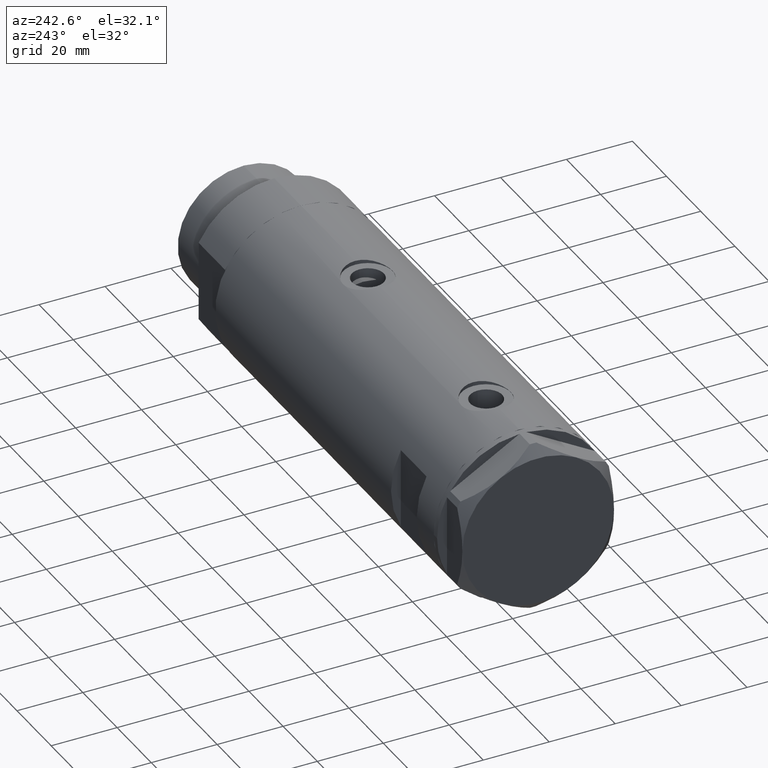
[diagram: clean part render]
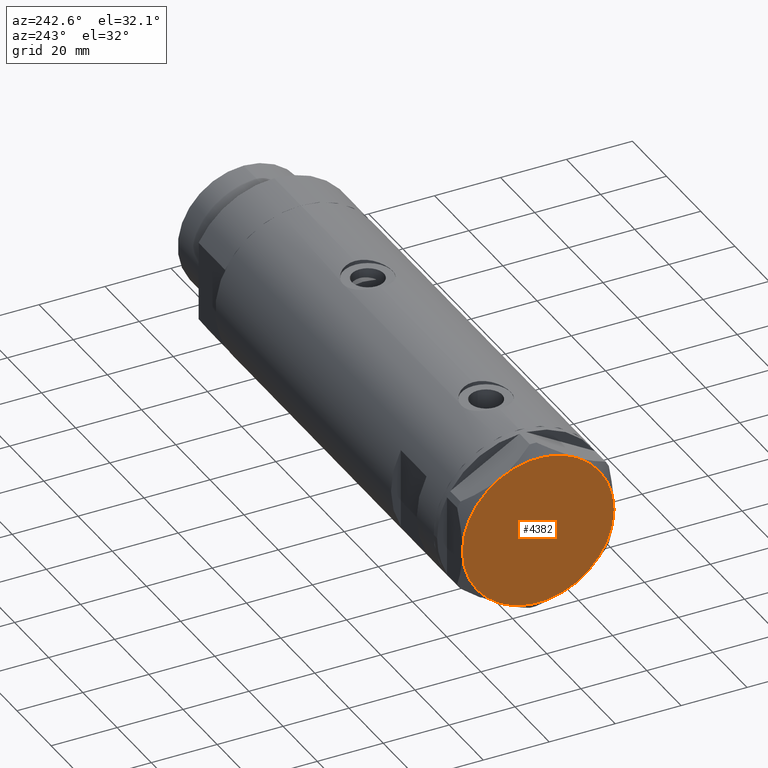
[diagram: same view with one face highlighted and labeled with its STEP entity id]
A machine part, auxiliary view. The second image highlights one B-rep face of the part: STEP entity #4382.
In plain terms, the highlighted planar face has unit normal (-1, -0, 0).
Its self-contained STEP definition (entity closure, byte-faithful):
#124 = CIRCLE ( 'NONE', #2885, 23.00000000000004619 ) ;
#188 = ORIENTED_EDGE ( 'NONE', *, *, #3105, .T. ) ;
#193 = DIRECTION ( 'NONE',  ( 1.000000000000000000, 0.000000000000000000, 0.000000000000000000 ) ) ;
#224 = FACE_OUTER_BOUND ( 'NONE', #484, .T. ) ;
#247 = VERTEX_POINT ( 'NONE', #4419 ) ;
#270 = DIRECTION ( 'NONE',  ( 1.000000000000000000, 0.000000000000000000, 0.000000000000000000 ) ) ;
#484 = EDGE_LOOP ( 'NONE', ( #3502, #4993, #188, #1763, #2980, #4884 ) ) ;
#519 = AXIS2_PLACEMENT_3D ( 'NONE', #1272, #2060, #2559 ) ;
#977 = CARTESIAN_POINT ( 'NONE',  ( 22.99999999999995026, 2.373657066004705010E-13, 9.000000000000000000 ) ) ;
#1135 = DIRECTION ( 'NONE',  ( 1.000000000000000000, 0.000000000000000000, 0.000000000000000000 ) ) ;
#1159 = VERTEX_POINT ( 'NONE', #1590 ) ;
#1175 = DIRECTION ( 'NONE',  ( 1.000000000000000000, 0.000000000000000000, 0.000000000000000000 ) ) ;
#1272 = CARTESIAN_POINT ( 'NONE',  ( 0.000000000000000000, 0.000000000000000000, 9.000000000000000000 ) ) ;
#1342 = EDGE_CURVE ( 'NONE', #2967, #4430, #3802, .T. ) ;
#1373 = CARTESIAN_POINT ( 'NONE',  ( 0.000000000000000000, 0.000000000000000000, 9.000000000000000000 ) ) ;
#1445 = CIRCLE ( 'NONE', #2286, 23.00000000000004619 ) ;
#1590 = CARTESIAN_POINT ( 'NONE',  ( -11.50000000000004441, 19.91858428704211548, 9.000000000000000000 ) ) ;
#1763 = ORIENTED_EDGE ( 'NONE', *, *, #4132, .T. ) ;
#1809 = PLANE ( 'NONE',  #3127 ) ;
#1813 = CARTESIAN_POINT ( 'NONE',  ( 0.000000000000000000, 0.000000000000000000, 9.000000000000000000 ) ) ;
#1853 = AXIS2_PLACEMENT_3D ( 'NONE', #4751, #3928, #1175 ) ;
#1950 = EDGE_CURVE ( 'NONE', #2183, #4758, #124, .T. ) ;
#2060 = DIRECTION ( 'NONE',  ( 0.000000000000000000, 0.000000000000000000, 1.000000000000000000 ) ) ;
#2183 = VERTEX_POINT ( 'NONE', #2971 ) ;
#2187 = DIRECTION ( 'NONE',  ( 0.000000000000000000, 0.000000000000000000, 1.000000000000000000 ) ) ;
#2189 = DIRECTION ( 'NONE',  ( 1.000000000000000000, 0.000000000000000000, 0.000000000000000000 ) ) ;
#2286 = AXIS2_PLACEMENT_3D ( 'NONE', #3892, #3029, #270 ) ;
#2401 = CIRCLE ( 'NONE', #4929, 23.00000000000004619 ) ;
#2446 = CIRCLE ( 'NONE', #1853, 23.00000000000004619 ) ;
#2559 = DIRECTION ( 'NONE',  ( 1.000000000000000000, 0.000000000000000000, 0.000000000000000000 ) ) ;
#2885 = AXIS2_PLACEMENT_3D ( 'NONE', #3104, #4706, #1135 ) ;
#2967 = VERTEX_POINT ( 'NONE', #4933 ) ;
#2971 = CARTESIAN_POINT ( 'NONE',  ( -23.00000000000004619, -8.112498833180673323E-14, 9.000000000000000000 ) ) ;
#2980 = ORIENTED_EDGE ( 'NONE', *, *, #1950, .T. ) ;
#3008 = DIRECTION ( 'NONE',  ( 0.000000000000000000, 0.000000000000000000, 1.000000000000000000 ) ) ;
#3029 = DIRECTION ( 'NONE',  ( 0.000000000000000000, 0.000000000000000000, 1.000000000000000000 ) ) ;
#3104 = CARTESIAN_POINT ( 'NONE',  ( 0.000000000000000000, 0.000000000000000000, 9.000000000000000000 ) ) ;
#3105 = EDGE_CURVE ( 'NONE', #247, #1159, #2401, .T. ) ;
#3127 = AXIS2_PLACEMENT_3D ( 'NONE', #3431, #5032, #4630 ) ;
#3165 = CARTESIAN_POINT ( 'NONE',  ( -11.49999999999990585, -19.91858428704219364, 9.000000000000000000 ) ) ;
#3223 = AXIS2_PLACEMENT_3D ( 'NONE', #1813, #3008, #2189 ) ;
#3431 = CARTESIAN_POINT ( 'NONE',  ( 0.000000000000000000, 0.000000000000000000, 9.000000000000000000 ) ) ;
#3502 = ORIENTED_EDGE ( 'NONE', *, *, #1342, .T. ) ;
#3802 = CIRCLE ( 'NONE', #3223, 23.00000000000004619 ) ;
#3892 = CARTESIAN_POINT ( 'NONE',  ( 0.000000000000000000, 0.000000000000000000, 9.000000000000000000 ) ) ;
#3928 = DIRECTION ( 'NONE',  ( 0.000000000000000000, 0.000000000000000000, 1.000000000000000000 ) ) ;
#3941 = EDGE_CURVE ( 'NONE', #4430, #247, #2446, .T. ) ;
#4132 = EDGE_CURVE ( 'NONE', #1159, #2183, #5147, .T. ) ;
#4336 = EDGE_CURVE ( 'NONE', #4758, #2967, #1445, .T. ) ;
#4382 = ADVANCED_FACE ( 'NONE', ( #224 ), #1809, .T. ) ;
#4419 = CARTESIAN_POINT ( 'NONE',  ( 11.49999999999990408, 19.91858428704219364, 9.000000000000000000 ) ) ;
#4430 = VERTEX_POINT ( 'NONE', #977 ) ;
#4630 = DIRECTION ( 'NONE',  ( 1.000000000000000000, 0.000000000000000000, -0.000000000000000000 ) ) ;
#4706 = DIRECTION ( 'NONE',  ( 0.000000000000000000, 0.000000000000000000, 1.000000000000000000 ) ) ;
#4751 = CARTESIAN_POINT ( 'NONE',  ( 0.000000000000000000, 0.000000000000000000, 9.000000000000000000 ) ) ;
#4758 = VERTEX_POINT ( 'NONE', #3165 ) ;
#4884 = ORIENTED_EDGE ( 'NONE', *, *, #4336, .T. ) ;
#4929 = AXIS2_PLACEMENT_3D ( 'NONE', #1373, #2187, #193 ) ;
#4933 = CARTESIAN_POINT ( 'NONE',  ( 11.50000000000018296, -19.91858428704203732, 9.000000000000000000 ) ) ;
#4993 = ORIENTED_EDGE ( 'NONE', *, *, #3941, .T. ) ;
#5032 = DIRECTION ( 'NONE',  ( 0.000000000000000000, 0.000000000000000000, 1.000000000000000000 ) ) ;
#5147 = CIRCLE ( 'NONE', #519, 23.00000000000004619 ) ;